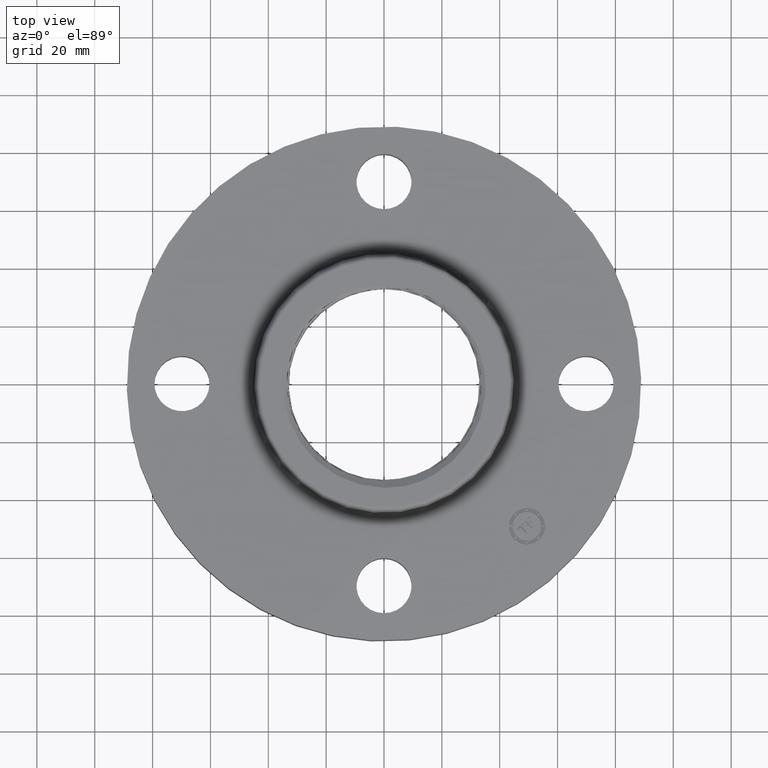
[diagram: clean part render]
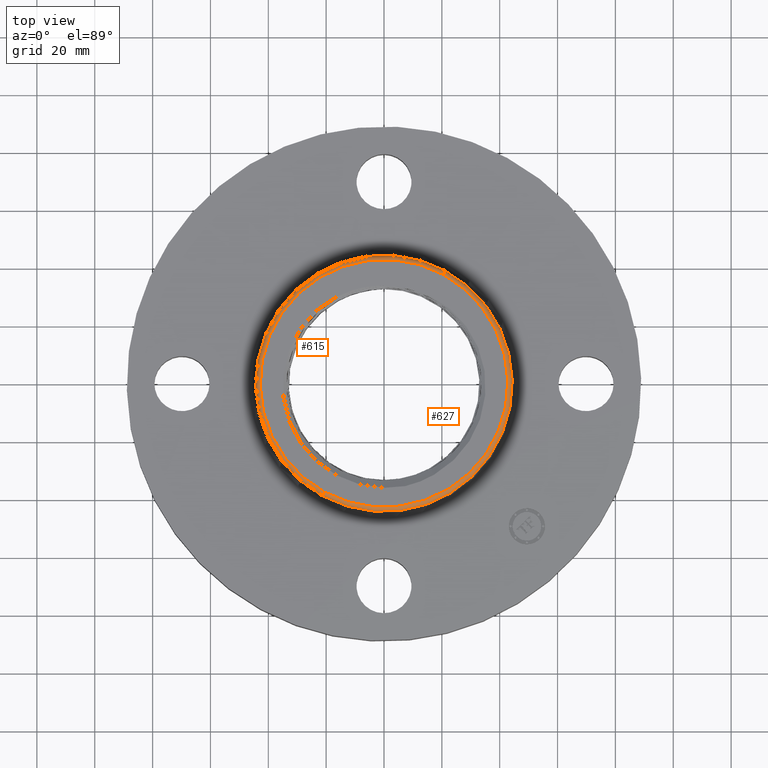
[diagram: same view with one multi-face feature highlighted, each face labeled with its STEP entity id]
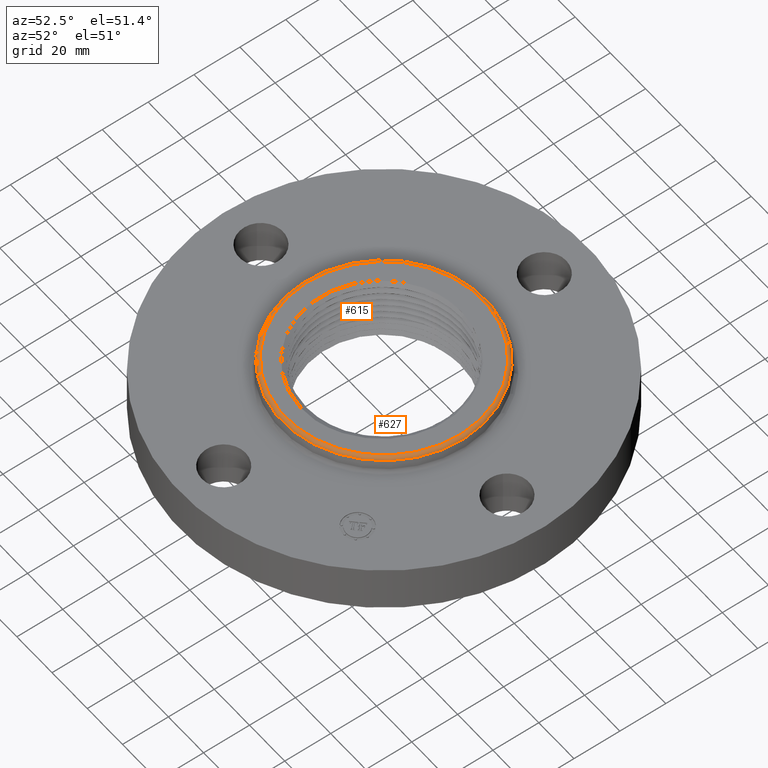
[diagram: same view with one multi-face feature highlighted, each face labeled with its STEP entity id]
A machine part, top view. The highlighted faces form ONE feature: a constant-radius fillet chain: 2 tangent blend faces with common blend radius 1.524 mm. The faces share edges in the B-rep.
A second angle (auxiliary view) of the same feature is appended — it is thin or edge-on in the first view.
Their STEP definitions:
[1] entity #615 (Torus):
#187=AXIS2_PLACEMENT_3D('Circle Axis2P3D',#185,#186,$) ;
#588=AXIS2_PLACEMENT_3D('Torus Axis2P3D',#585,#586,#587) ;
#592=AXIS2_PLACEMENT_3D('Circle Axis2P3D',#590,#591,$) ;
#601=AXIS2_PLACEMENT_3D('Circle Axis2P3D',#599,#600,$) ;
#606=AXIS2_PLACEMENT_3D('Circle Axis2P3D',#604,#605,$) ;
#180=CARTESIAN_POINT('Vertex',(0.808106396737,1.47922883707,1.06)) ;
#182=CARTESIAN_POINT('Vertex',(-0.808106396737,-1.47922883707,1.06)) ;
#185=CARTESIAN_POINT('Axis2P3D Location',(0.,0.,1.06)) ;
#585=CARTESIAN_POINT('Axis2P3D Location',(0.,0.,1.)) ;
#590=CARTESIAN_POINT('Axis2P3D Location',(0.,0.,1.01041889066)) ;
#594=CARTESIAN_POINT('Vertex',(-0.836434915982,-1.53108384372,1.01041889066)) ;
#596=CARTESIAN_POINT('Vertex',(0.836434915982,1.53108384372,1.01041889066)) ;
#599=CARTESIAN_POINT('Axis2P3D Location',(-0.808106396737,-1.47922883707,1.)) ;
#604=CARTESIAN_POINT('Axis2P3D Location',(0.808106396737,1.47922883707,1.)) ;
#186=DIRECTION('Axis2P3D Direction',(0.,0.,-0.0393700787402)) ;
#586=DIRECTION('Axis2P3D Direction',(0.,0.,-0.0393700787402)) ;
#587=DIRECTION('Axis2P3D XDirection',(0.0188750212049,0.0345504945626,0.)) ;
#591=DIRECTION('Axis2P3D Direction',(0.,0.,-0.0393700787402)) ;
#600=DIRECTION('Axis2P3D Direction',(0.0345504945626,-0.0188750212049,0.)) ;
#605=DIRECTION('Axis2P3D Direction',(-0.0345504945626,0.0188750212049,0.)) ;
#610=ORIENTED_EDGE('',*,*,#598,.F.) ;
#611=ORIENTED_EDGE('',*,*,#603,.T.) ;
#612=ORIENTED_EDGE('',*,*,#189,.T.) ;
#613=ORIENTED_EDGE('',*,*,#608,.F.) ;
#615=ADVANCED_FACE('PartBody',(#614),#589,.T.) ;
#188=CIRCLE('generated circle',#187,1.68557227696) ;
#593=CIRCLE('generated circle',#592,1.74466074214) ;
#602=CIRCLE('generated circle',#601,0.0600000000002) ;
#607=CIRCLE('generated circle',#606,0.0600000000002) ;
#589=TOROIDAL_SURFACE('homeo Torus',#588,1.68557227696,0.0600000000002) ;
#189=EDGE_CURVE('',#183,#181,#188,.T.) ;
#598=EDGE_CURVE('',#595,#597,#593,.T.) ;
#603=EDGE_CURVE('',#595,#183,#602,.F.) ;
#608=EDGE_CURVE('',#597,#181,#607,.F.) ;
#609=EDGE_LOOP('',(#610,#611,#612,#613)) ;
#614=FACE_OUTER_BOUND('',#609,.T.) ;
#181=VERTEX_POINT('',#180) ;
#183=VERTEX_POINT('',#182) ;
#595=VERTEX_POINT('',#594) ;
#597=VERTEX_POINT('',#596) ;
[2] entity #627 (Torus):
#178=AXIS2_PLACEMENT_3D('Circle Axis2P3D',#176,#177,$) ;
#588=AXIS2_PLACEMENT_3D('Torus Axis2P3D',#585,#586,#587) ;
#601=AXIS2_PLACEMENT_3D('Circle Axis2P3D',#599,#600,$) ;
#606=AXIS2_PLACEMENT_3D('Circle Axis2P3D',#604,#605,$) ;
#618=AXIS2_PLACEMENT_3D('Circle Axis2P3D',#616,#617,$) ;
#176=CARTESIAN_POINT('Axis2P3D Location',(0.,0.,1.06)) ;
#180=CARTESIAN_POINT('Vertex',(0.808106396737,1.47922883707,1.06)) ;
#182=CARTESIAN_POINT('Vertex',(-0.808106396737,-1.47922883707,1.06)) ;
#585=CARTESIAN_POINT('Axis2P3D Location',(0.,0.,1.)) ;
#594=CARTESIAN_POINT('Vertex',(-0.836434915982,-1.53108384372,1.01041889066)) ;
#596=CARTESIAN_POINT('Vertex',(0.836434915982,1.53108384372,1.01041889066)) ;
#599=CARTESIAN_POINT('Axis2P3D Location',(-0.808106396737,-1.47922883707,1.)) ;
#604=CARTESIAN_POINT('Axis2P3D Location',(0.808106396737,1.47922883707,1.)) ;
#616=CARTESIAN_POINT('Axis2P3D Location',(0.,0.,1.01041889066)) ;
#177=DIRECTION('Axis2P3D Direction',(0.,0.,-0.0393700787402)) ;
#586=DIRECTION('Axis2P3D Direction',(0.,0.,-0.0393700787402)) ;
#587=DIRECTION('Axis2P3D XDirection',(0.0188750212049,0.0345504945626,0.)) ;
#600=DIRECTION('Axis2P3D Direction',(0.0345504945626,-0.0188750212049,0.)) ;
#605=DIRECTION('Axis2P3D Direction',(-0.0345504945626,0.0188750212049,0.)) ;
#617=DIRECTION('Axis2P3D Direction',(0.,0.,-0.0393700787402)) ;
#622=ORIENTED_EDGE('',*,*,#620,.F.) ;
#623=ORIENTED_EDGE('',*,*,#608,.T.) ;
#624=ORIENTED_EDGE('',*,*,#184,.T.) ;
#625=ORIENTED_EDGE('',*,*,#603,.F.) ;
#627=ADVANCED_FACE('PartBody',(#626),#589,.T.) ;
#179=CIRCLE('generated circle',#178,1.68557227696) ;
#602=CIRCLE('generated circle',#601,0.0600000000002) ;
#607=CIRCLE('generated circle',#606,0.0600000000002) ;
#619=CIRCLE('generated circle',#618,1.74466074214) ;
#589=TOROIDAL_SURFACE('homeo Torus',#588,1.68557227696,0.0600000000002) ;
#184=EDGE_CURVE('',#181,#183,#179,.T.) ;
#603=EDGE_CURVE('',#595,#183,#602,.F.) ;
#608=EDGE_CURVE('',#597,#181,#607,.F.) ;
#620=EDGE_CURVE('',#597,#595,#619,.T.) ;
#621=EDGE_LOOP('',(#622,#623,#624,#625)) ;
#626=FACE_OUTER_BOUND('',#621,.T.) ;
#181=VERTEX_POINT('',#180) ;
#183=VERTEX_POINT('',#182) ;
#595=VERTEX_POINT('',#594) ;
#597=VERTEX_POINT('',#596) ;